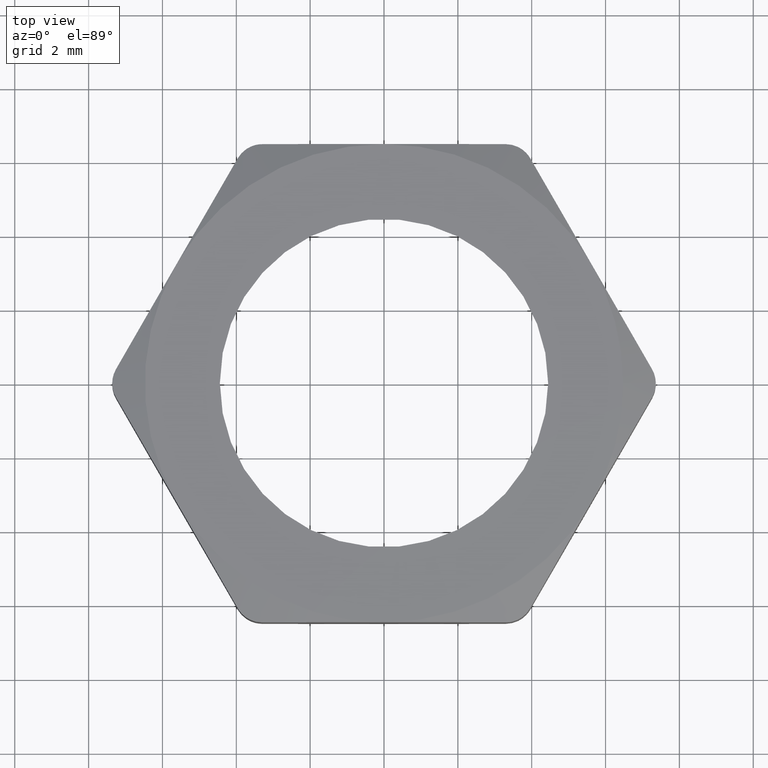
[diagram: clean part render]
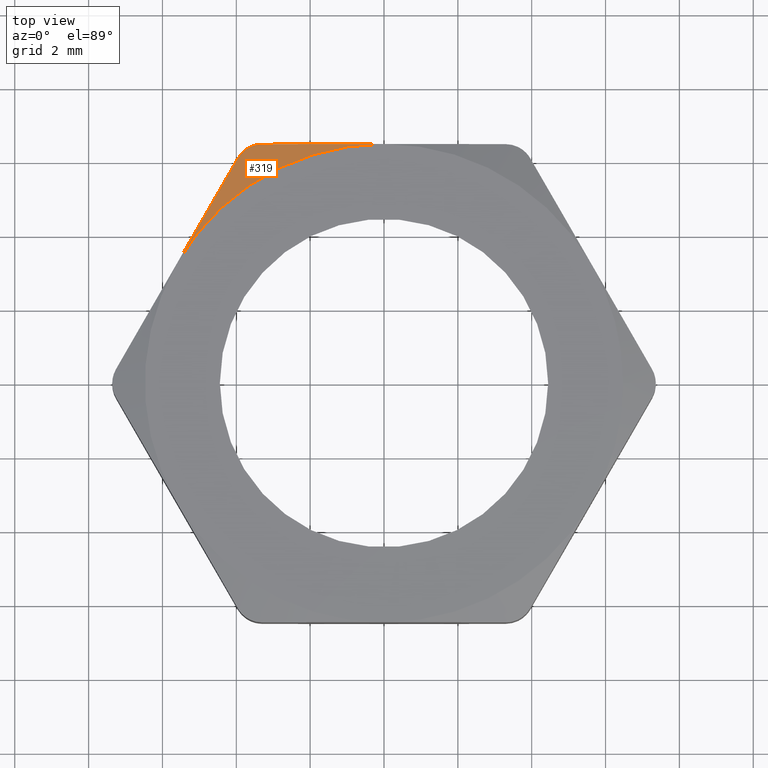
[diagram: same view with one face highlighted and labeled with its STEP entity id]
A machine part, top view. The second image highlights one B-rep face of the part: STEP entity #319.
In plain terms, the highlighted conical surface has half-angle 70 deg.
Its self-contained STEP definition (entity closure, byte-faithful):
#46 = VERTEX_POINT ( 'NONE', #624 ) ;
#76 = EDGE_CURVE ( 'NONE', #2291, #46, #669, .T. ) ;
#277 = EDGE_CURVE ( 'NONE', #2328, #2288, #1073, .T. ) ;
#319 = ADVANCED_FACE ( 'NONE', ( #1078 ), #1077, .T. ) ;
#320 = EDGE_LOOP ( 'NONE', ( #321, #322, #323, #324 ) ) ;
#321 = ORIENTED_EDGE ( 'NONE', *, *, #2290, .T. ) ;
#322 = ORIENTED_EDGE ( 'NONE', *, *, #277, .F. ) ;
#323 = ORIENTED_EDGE ( 'NONE', *, *, #2331, .T. ) ;
#324 = ORIENTED_EDGE ( 'NONE', *, *, #76, .F. ) ;
#624 = CARTESIAN_POINT ( 'NONE',  ( -0.1299038105676660300, 0.2550000000000000600, 0.09865076735325020700 ) ) ;
#661 = CARTESIAN_POINT ( 'NONE',  ( -0.1299038105676660300, 0.2550000000000000600, 0.09865076735325020700 ) ) ;
#662 = CARTESIAN_POINT ( 'NONE',  ( -0.1351391167837061000, 0.2550000000000000600, 0.09778582353929972400 ) ) ;
#663 = CARTESIAN_POINT ( 'NONE',  ( -0.1403867361018853500, 0.2535921146958888300, 0.09733009600928151100 ) ) ;
#664 = CARTESIAN_POINT ( 'NONE',  ( -0.1494503151299579100, 0.2483524069409375800, 0.09733203109413317300 ) ) ;
#665 = CARTESIAN_POINT ( 'NONE',  ( -0.1532672700022089100, 0.2445333012187967700, 0.09778593933058657400 ) ) ;
#666 = CARTESIAN_POINT ( 'NONE',  ( -0.1558845726811989000, 0.2400000000000001000, 0.09865076735324980500 ) ) ;
#669 = B_SPLINE_CURVE_WITH_KNOTS ( 'NONE', 3,
 ( #666, #665, #664, #663, #662, #661 ),
 .UNSPECIFIED., .F., .F.,
 ( 4, 2, 4 ),
 ( 2.308141957608539200E-007, 0.0003989327090014353700, 0.0007976346038071098600 ),
 .UNSPECIFIED. ) ;
#1067 = DIRECTION ( 'NONE',  ( 1.000000000000000000, 0.0000000000000000000, 0.0000000000000000000 ) ) ;
#1068 = DIRECTION ( 'NONE',  ( 0.0000000000000000000, 0.0000000000000000000, 1.000000000000000000 ) ) ;
#1069 = CARTESIAN_POINT ( 'NONE',  ( 0.0000000000000000000, 0.0000000000000000000, 0.1100000000000000000 ) ) ;
#1070 = AXIS2_PLACEMENT_3D ( 'NONE', #1069, #1068, #1067 ) ;
#1073 = CIRCLE ( 'NONE', #1070, 0.2550000000000000600 ) ;
#1074 = DIRECTION ( 'NONE',  ( 1.000000000000000000, 0.0000000000000000000, 0.0000000000000000000 ) ) ;
#1075 = DIRECTION ( 'NONE',  ( 0.0000000000000000000, 0.0000000000000000000, -1.000000000000000000 ) ) ;
#1076 = AXIS2_PLACEMENT_3D ( 'NONE', #1082, #1075, #1074 ) ;
#1077 = CONICAL_SURFACE ( 'NONE', #1076, 0.2550000000000000600, 1.221730476396033500 ) ;
#1078 = FACE_OUTER_BOUND ( 'NONE', #320, .T. ) ;
#1082 = CARTESIAN_POINT ( 'NONE',  ( 0.0000000000000000000, 0.0000000000000000000, 0.1100000000000000000 ) ) ;
#1869 = CARTESIAN_POINT ( 'NONE',  ( -0.2208364779650318900, 0.1275000000000001100, 0.1100000000000000000 ) ) ;
#1870 = CARTESIAN_POINT ( 'NONE',  ( -0.1991858428704208800, 0.1650000000000001200, 0.1100000000000000000 ) ) ;
#1871 = CARTESIAN_POINT ( 'NONE',  ( -0.1775352077758098900, 0.2025000000000001000, 0.1058047263082381900 ) ) ;
#1872 = CARTESIAN_POINT ( 'NONE',  ( -0.1558845726811989000, 0.2400000000000001000, 0.09865076735324980500 ) ) ;
#1873 = CARTESIAN_POINT ( 'NONE',  ( -0.1558845726811989000, 0.2400000000000001000, 0.09865076735324980500 ) ) ;
#1874 = B_SPLINE_CURVE_WITH_KNOTS ( 'NONE', 3,
 ( #1872, #1871, #1870, #1869 ),
 .UNSPECIFIED., .F., .F.,
 ( 4, 4 ),
 ( 2.309401076752023500E-007, 0.003299787728526387400 ),
 .UNSPECIFIED. ) ;
#1879 = CARTESIAN_POINT ( 'NONE',  ( -0.2208364779650318900, 0.1275000000000001100, 0.1100000000000000000 ) ) ;
#1940 = CARTESIAN_POINT ( 'NONE',  ( -0.1299038105676660300, 0.2550000000000000600, 0.09865076735325020700 ) ) ;
#1941 = CARTESIAN_POINT ( 'NONE',  ( -0.1083604183673531500, 0.2550000000000000600, 0.1022100288455516200 ) ) ;
#1942 = CARTESIAN_POINT ( 'NONE',  ( -0.08660386541922202000, 0.2550000000000000600, 0.1050919391943992800 ) ) ;
#1943 = CARTESIAN_POINT ( 'NONE',  ( -0.04325637950675551000, 0.2550000000000001200, 0.1089850304776450200 ) ) ;
#1944 = CARTESIAN_POINT ( 'NONE',  ( -0.02161212541823653900, 0.2550000000000000600, 0.1100000000000000000 ) ) ;
#1945 = CARTESIAN_POINT ( 'NONE',  ( 0.0000000000000000000, 0.2550000000000000600, 0.1100000000000000000 ) ) ;
#1949 = B_SPLINE_CURVE_WITH_KNOTS ( 'NONE', 3,
 ( #1945, #1944, #1943, #1942, #1941, #1940 ),
 .UNSPECIFIED., .F., .F.,
 ( 4, 2, 4 ),
 ( 0.01827658229046992200, 0.01993203293988631700, 0.02158748358930270800 ),
 .UNSPECIFIED. ) ;
#1955 = CARTESIAN_POINT ( 'NONE',  ( 0.0000000000000000000, 0.2550000000000000600, 0.1100000000000000000 ) ) ;
#2288 = VERTEX_POINT ( 'NONE', #1879 ) ;
#2290 = EDGE_CURVE ( 'NONE', #2291, #2288, #1874, .T. ) ;
#2291 = VERTEX_POINT ( 'NONE', #1873 ) ;
#2328 = VERTEX_POINT ( 'NONE', #1955 ) ;
#2331 = EDGE_CURVE ( 'NONE', #2328, #46, #1949, .T. ) ;